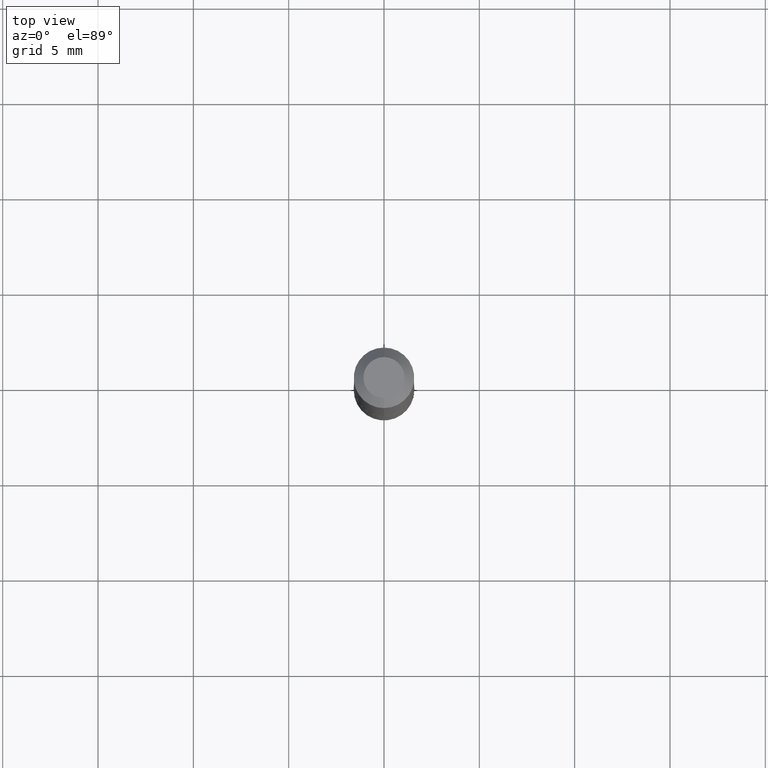
[diagram: clean part render]
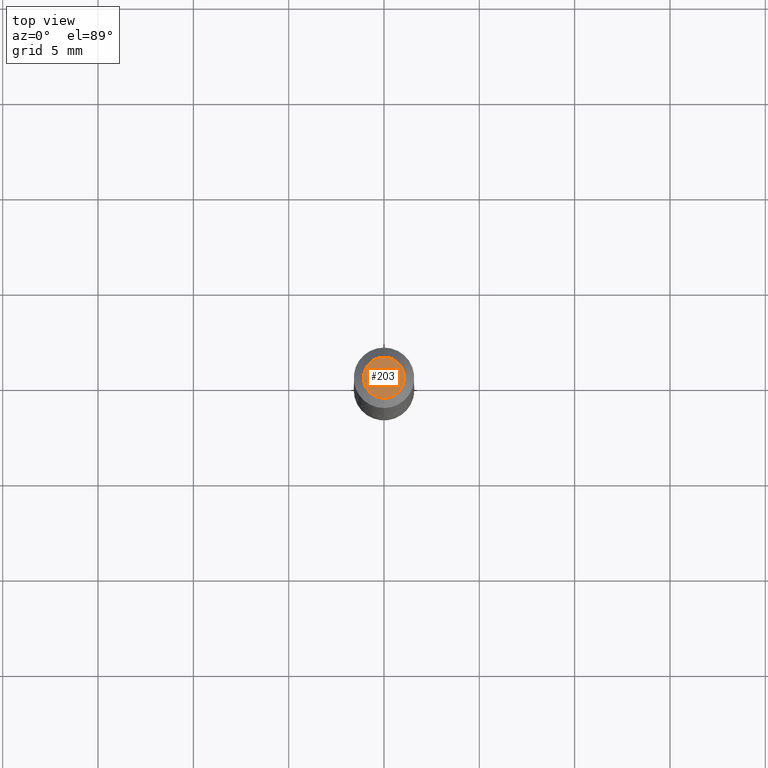
[diagram: same view with one face highlighted and labeled with its STEP entity id]
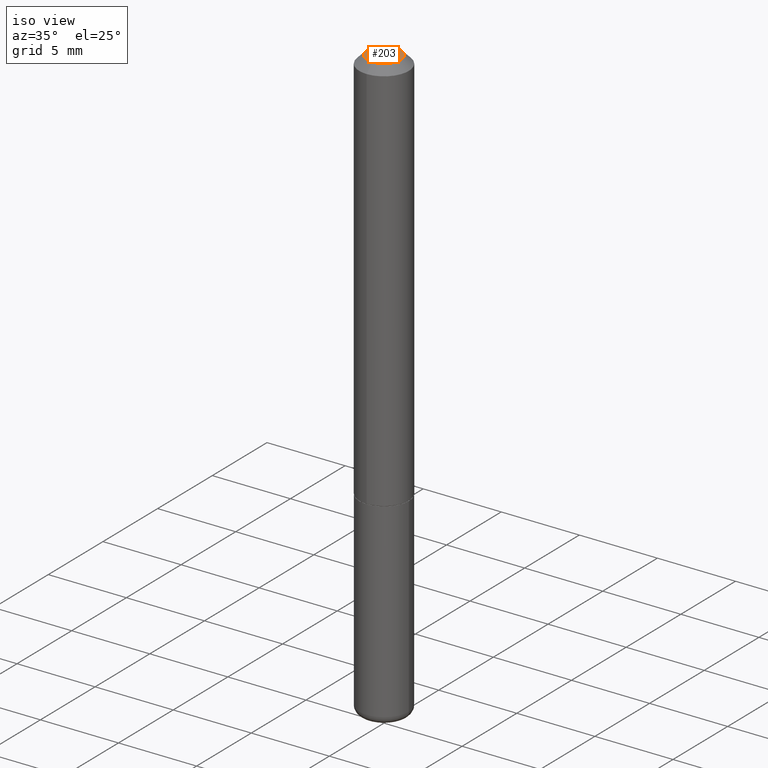
[diagram: same view with one face highlighted and labeled with its STEP entity id]
A machine part, top view. The second image highlights one B-rep face of the part: STEP entity #203.
A second angle (iso view) of the same face is appended — the face is thin or edge-on in the first view.
In plain terms, the highlighted planar face has unit normal (0, -0, -1).
Its self-contained STEP definition (entity closure, byte-faithful):
#18 = CARTESIAN_POINT ( 'NONE',  ( 2.967759138016645800E-16, 0.04249999999999975325, -5.303462480398862614E-17 ) ) ;
#27 = EDGE_CURVE ( 'NONE', #266, #354, #256, .T. ) ;
#48 = DIRECTION ( 'NONE',  ( 2.422853900557314861E-29, -3.523867170862678489E-15, -1.000000000000000000 ) ) ;
#73 = CARTESIAN_POINT ( 'NONE',  ( -4.687240070556140497E-45, 6.817254396885214509E-31, 1.934594599153486335E-16 ) ) ;
#86 = AXIS2_PLACEMENT_3D ( 'NONE', #73, #168, #201 ) ;
#92 = ORIENTED_EDGE ( 'NONE', *, *, #27, .T. ) ;
#120 = DIRECTION ( 'NONE',  ( 6.982962677686265922E-15, 1.000000000000000000, -3.523867170862678489E-15 ) ) ;
#124 = DIRECTION ( 'NONE',  ( -6.982962677686265922E-15, -1.000000000000000000, 3.523867170862678095E-15 ) ) ;
#168 = DIRECTION ( 'NONE',  ( -2.422853900557315141E-29, 3.523867170862678489E-15, 1.000000000000000000 ) ) ;
#182 = DIRECTION ( 'NONE',  ( -2.422853900557315141E-29, 3.523867170862678489E-15, 1.000000000000000000 ) ) ;
#201 = DIRECTION ( 'NONE',  ( -6.982962677686265922E-15, -1.000000000000000000, 3.523867170862678095E-15 ) ) ;
#203 = ADVANCED_FACE ( 'NONE', ( #394 ), #308, .F. ) ;
#218 = CARTESIAN_POINT ( 'NONE',  ( -3.601761448830040600E-16, -0.04249999999999975325, 3.432238146770115888E-16 ) ) ;
#220 = AXIS2_PLACEMENT_3D ( 'NONE', #306, #182, #124 ) ;
#256 = CIRCLE ( 'NONE', #86, 0.04249999999999975325 ) ;
#266 = VERTEX_POINT ( 'NONE', #372 ) ;
#306 = CARTESIAN_POINT ( 'NONE',  ( -4.687240070556140497E-45, 6.817254396885214509E-31, 1.934594599153486335E-16 ) ) ;
#308 = PLANE ( 'NONE',  #404 ) ;
#351 = EDGE_CURVE ( 'NONE', #354, #266, #397, .T. ) ;
#354 = VERTEX_POINT ( 'NONE', #218 ) ;
#358 = ORIENTED_EDGE ( 'NONE', *, *, #351, .T. ) ;
#372 = CARTESIAN_POINT ( 'NONE',  ( 3.666055405785281740E-16, 0.04249999999999975325, 4.369510515368569678E-17 ) ) ;
#394 = FACE_OUTER_BOUND ( 'NONE', #416, .T. ) ;
#397 = CIRCLE ( 'NONE', #220, 0.04249999999999975325 ) ;
#404 = AXIS2_PLACEMENT_3D ( 'NONE', #18, #48, #120 ) ;
#416 = EDGE_LOOP ( 'NONE', ( #92, #358 ) ) ;